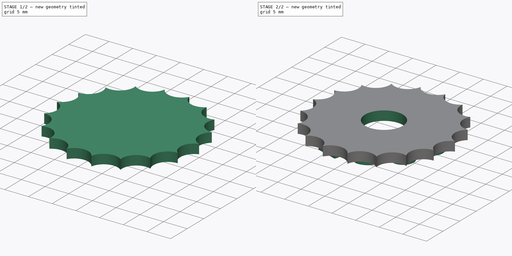
[diagram: build sequence overview — one tinted view per stage of 2, left to right]
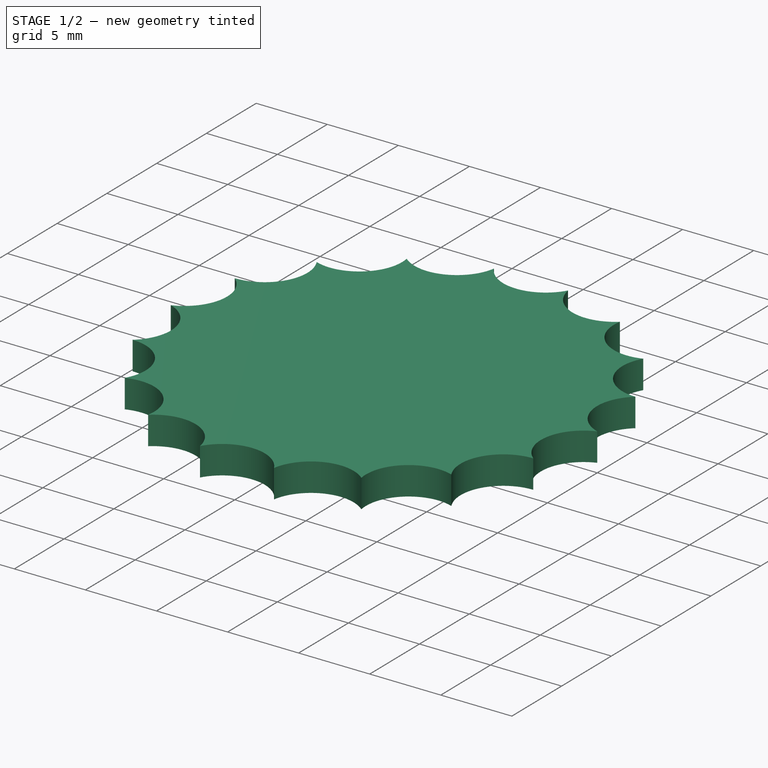
[diagram: stage 1 of 2 — iso view after this stage's code; geometry added in this stage tinted green]
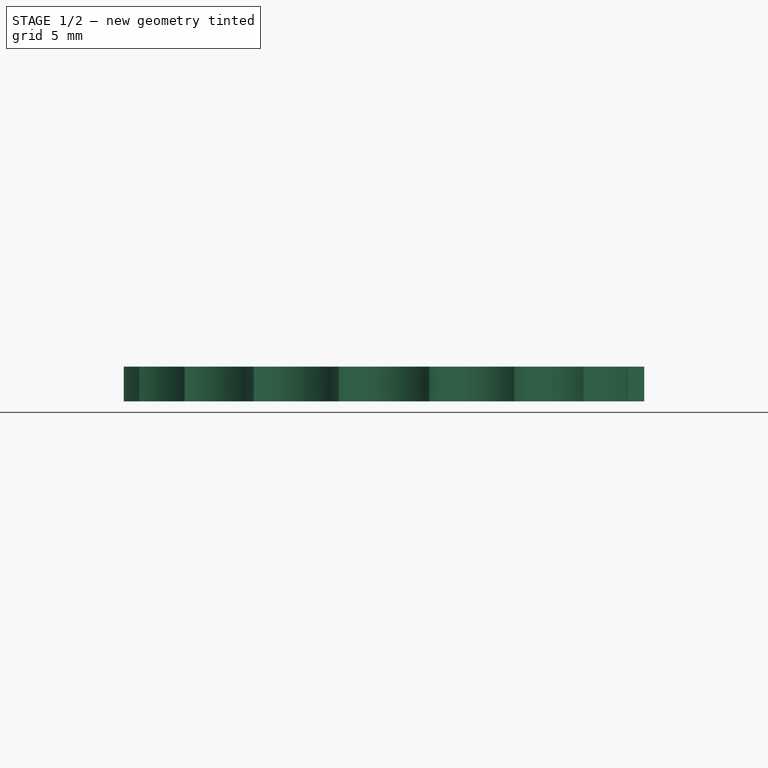
[diagram: stage 1 of 2 — front view after this stage's code; geometry added in this stage tinted green]
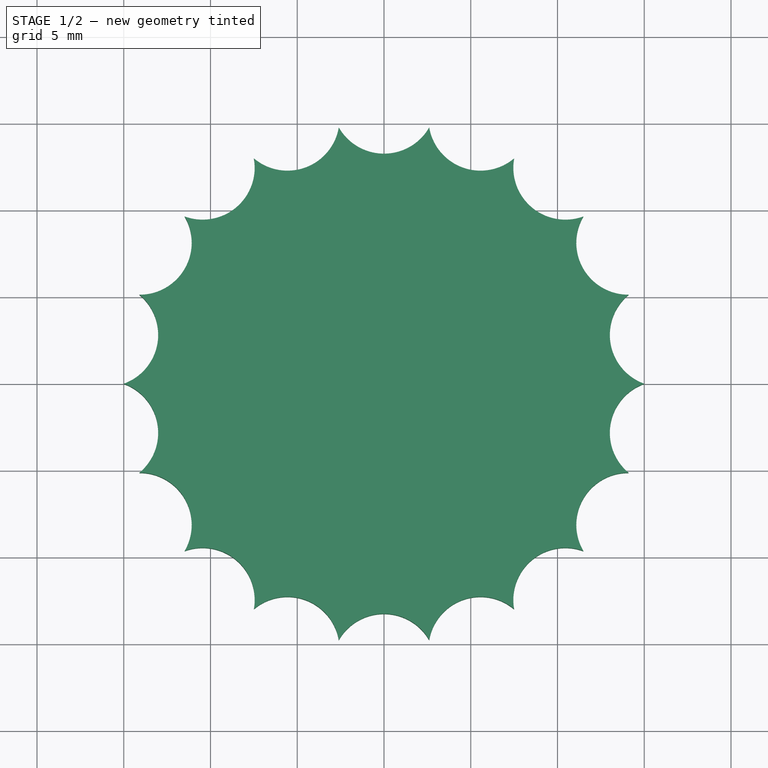
[diagram: stage 1 of 2 — top view after this stage's code; geometry added in this stage tinted green]
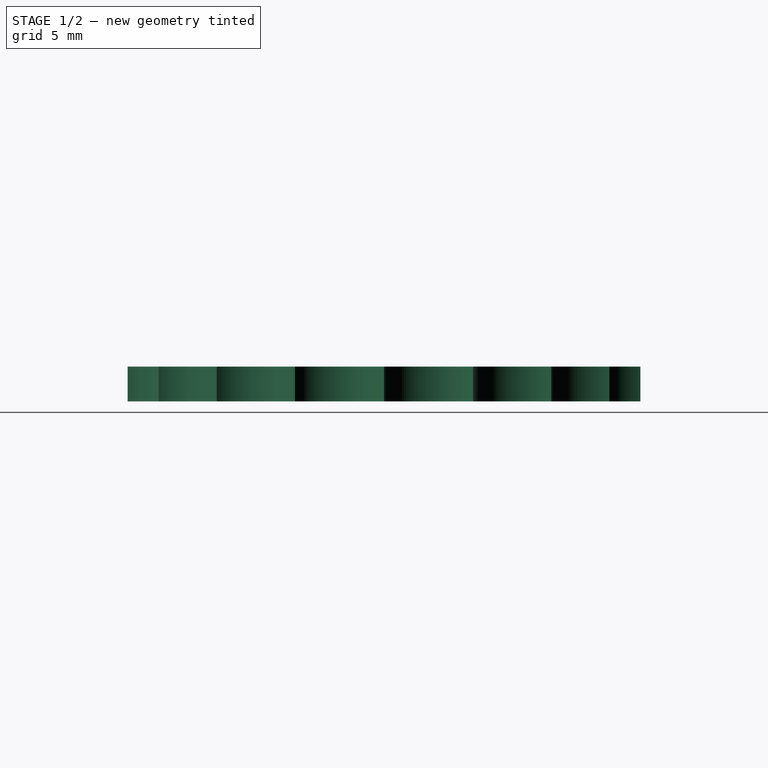
[diagram: stage 1 of 2 — right view after this stage's code; geometry added in this stage tinted green]
FCSTD DOCUMENT  (FreeCAD 0.20R29603 (Git))
Label: mileage tracker
License: All rights reserved
LicenseURL: http://en.wikipedia.org/wiki/All_rights_reserved
objects: Part::FeaturePython×2, Sketcher::SketchObject×2, Part::Extrusion×1, PartDesign::Pad×1, PartDesign::PolarPattern×1, PartDesign::Pocket×1, PartDesign::Body×1
note: 11 computed .brp shape members not serialized (recipe doc carries the construction recipe); baked Part::Feature solids carry a one-line shape summary decoded from their .brp

FEATURE [Sketcher::SketchObject] Sketch001
  FullyConstrained = true
  MapMode = 5
  Support = -> [XY_Plane]
  sketch-geometry (1):
    g0: Circle CenterX=0 CenterY=0 CenterZ=0 NormalX=0 NormalY=0 NormalZ=1 AngleXU=0 Radius=4
  constraints (2):
    c: Coincident(g0,g-1)
    c: Diameter(g0) = 8
FEATURE [Sketcher::SketchObject] Sketch002
  FullyConstrained = true
  MapMode = 5
  Support = -> [XY_Plane]
  sketch-geometry (3):
    g0: LineSegment StartX=-2.60472 StartY=14.7721 StartZ=0 EndX=0 EndY=0 EndZ=0
    g1: LineSegment StartX=0 StartY=0 StartZ=0 EndX=2.60472 EndY=14.7721 EndZ=0
    g2: ArcOfCircle CenterX=0 CenterY=16.2605 CenterZ=0 NormalX=0 NormalY=0 NormalZ=1 AngleXU=0 Radius=3 StartAngle=3.66074 EndAngle=5.76403
  constraints (8):
    c: Coincident(g0,g-1)
    c: Coincident(g0,g1)
    c: Angle(g1,g0) = 0.349066
    c: Coincident(g2,g0)
    c: Coincident(g2,g1)
    c: Diameter(g2) = 6
    c: Symmetric(g1,g0,g-2)
    c: Distance(g1) = 15
FEATURE [PartDesign::Pad] Pad
  Direction = (0,0,1)
  Length = 2
  Length2 = 10
  Profile = -> Sketch002
  ReferenceAxis = -> Sketch002 [N_Axis]
  Type = 0
FEATURE [PartDesign::PolarPattern] PolarPattern
  Angle = 360
  Axis = -> Sketch002 [N_Axis]
  BaseFeature = -> Pad
  Occurrences = 18
  Originals = -> [Pad]
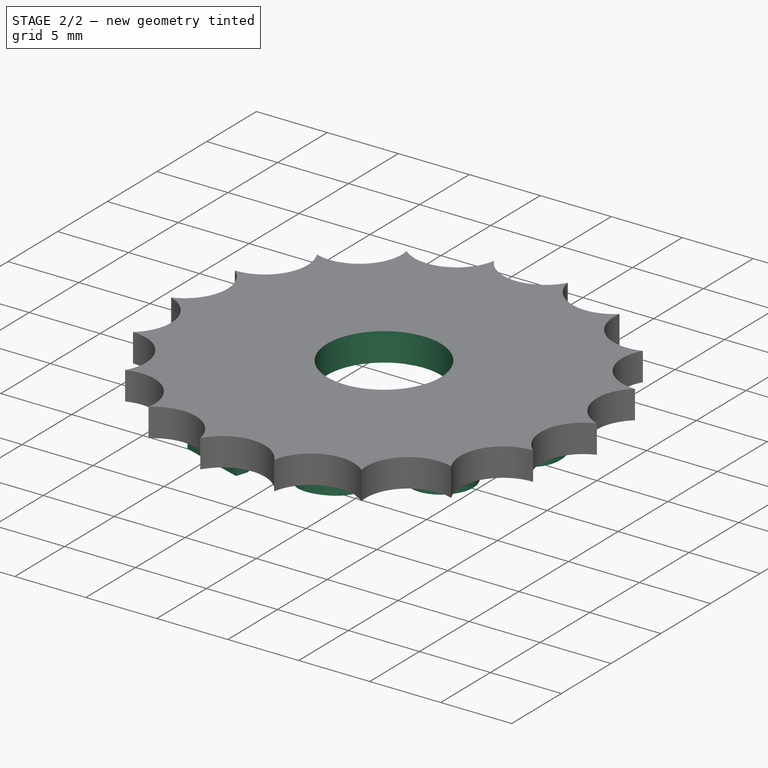
[diagram: stage 2 of 2 — iso view after this stage's code; geometry added in this stage tinted green]
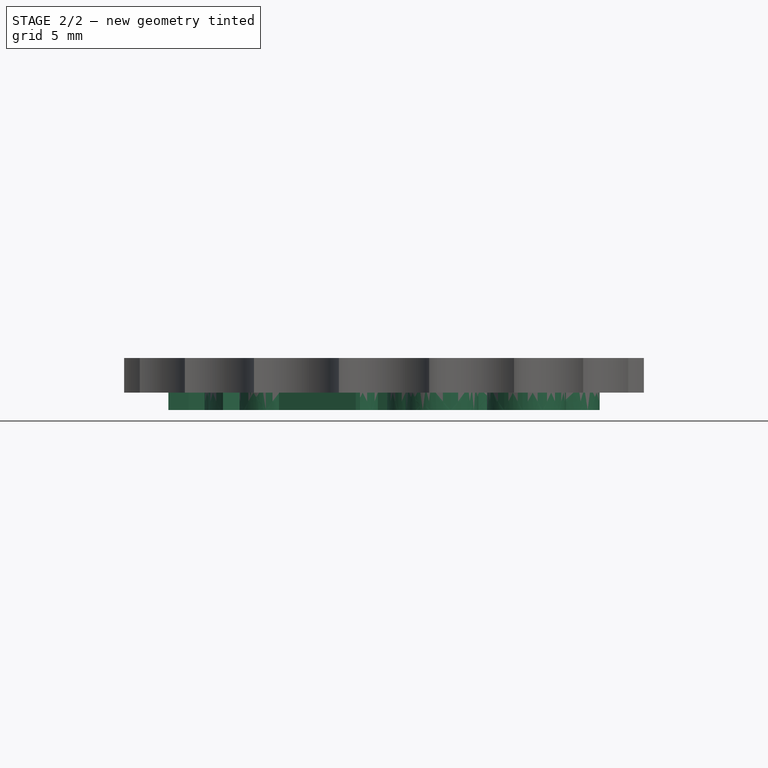
[diagram: stage 2 of 2 — front view after this stage's code; geometry added in this stage tinted green]
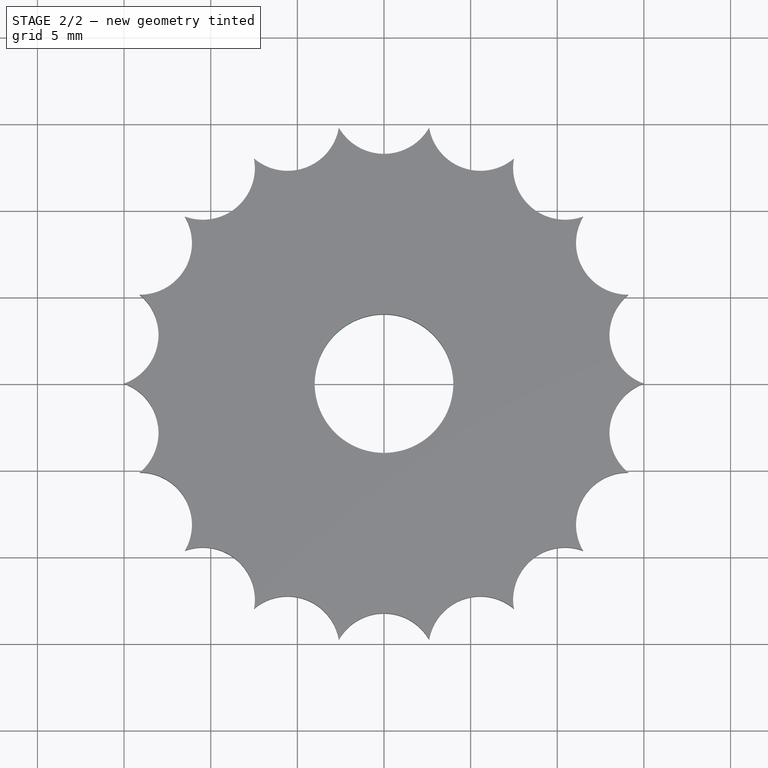
[diagram: stage 2 of 2 — top view after this stage's code; geometry added in this stage tinted green]
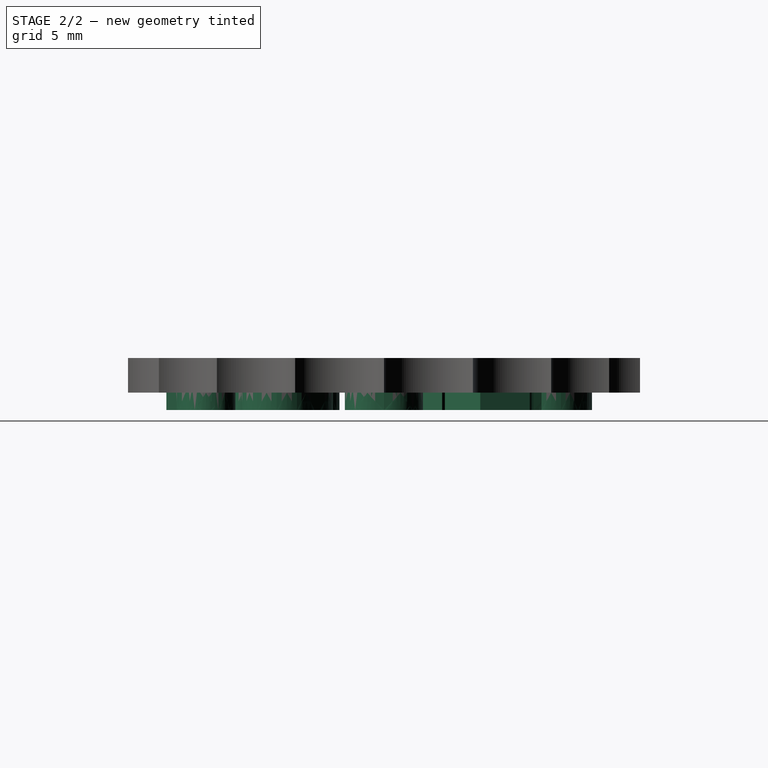
[diagram: stage 2 of 2 — right view after this stage's code; geometry added in this stage tinted green]
FEATURE [Part::FeaturePython] PolarArray  # WARN: FeaturePython — macro-defined, semantics opaque (R4)
  Alignment = 3
  AttacherType = Attacher::AttachEngine3D
  CellStart = A1
  Count = 10
  DistributionLaw = 0
  EndInclusive = false
  ExposePlacement = false
  FlipX = false
  FlipZ = true
  GeneratorMode = 0
  MarkerShape = 1
  MarkerSize = 0
  NumElements = 10
  OrientMode = 3
  Radius = 6
  Reverse = false
  SpanEnd = 360
  SpanStart = 0
  Step = 36
  Type = lattice2PolarArray2.PolarArray
  UseArcRadius = false
  UseArcRange = 0
  VSGVersion = 1
  Values = 0.0 | 36.0 | 72.0 | 108.0 | 144.0 | 180.0 | 216.0 | 252.0 | 288.0 | 324.0
  ValuesSource = 2
  isLattice = 1
FEATURE [Part::FeaturePython] Strings  # WARN: FeaturePython — macro-defined, semantics opaque (R4)
  AlignPrecisionBoundBox = false
  ArrayLink = -> PolarArray
  FontFile = <userpath>/.fonts/Roboto/hinted/Roboto-Black.ttf
  FullPathToFont = <userpath>/.fonts/Roboto/hinted/Roboto-Black.ttf
  MakeFace = false
  Size = 8
  Strings = 0 | 1 | 2 | 3 | 4 | 5 | 6 | 7 | 8 | 9
  Tracking = 0
  XAlign = 3
  YAlign = 0
FEATURE [Part::Extrusion] Extrude001
  Base = -> Strings
  Dir = (0,0,1)
  DirMode = 2
  FaceMakerClass = Part::FaceMakerBullseye
  LengthFwd = 1
  LengthRev = 1
  Solid = true
  Symmetric = false
FEATURE [PartDesign::Pocket] Pocket
  BaseFeature = -> PolarPattern
  Direction = (0,0,-1)
  Length = 5
  Length2 = 5
  Midplane = true
  Profile = -> Sketch001
  ReferenceAxis = -> Sketch001 [N_Axis]
  Type = 1
FEATURE [PartDesign::Body] Body
  Group = -> [Sketch001,Sketch002,Pad,PolarPattern,Pocket]
  Origin = -> Origin
  Tip = -> Pocket
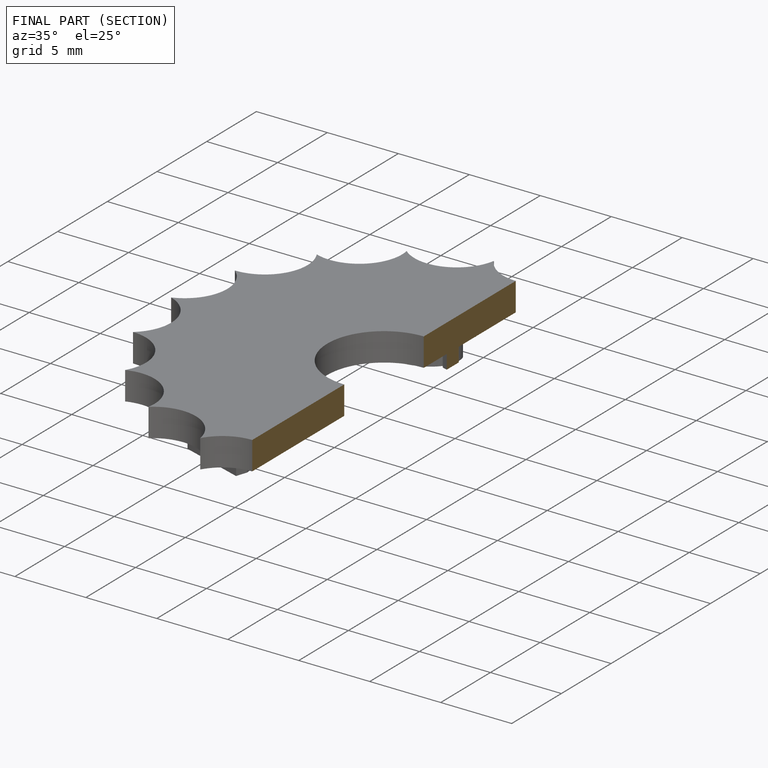
[diagram: finished part — half-section view (interior)]
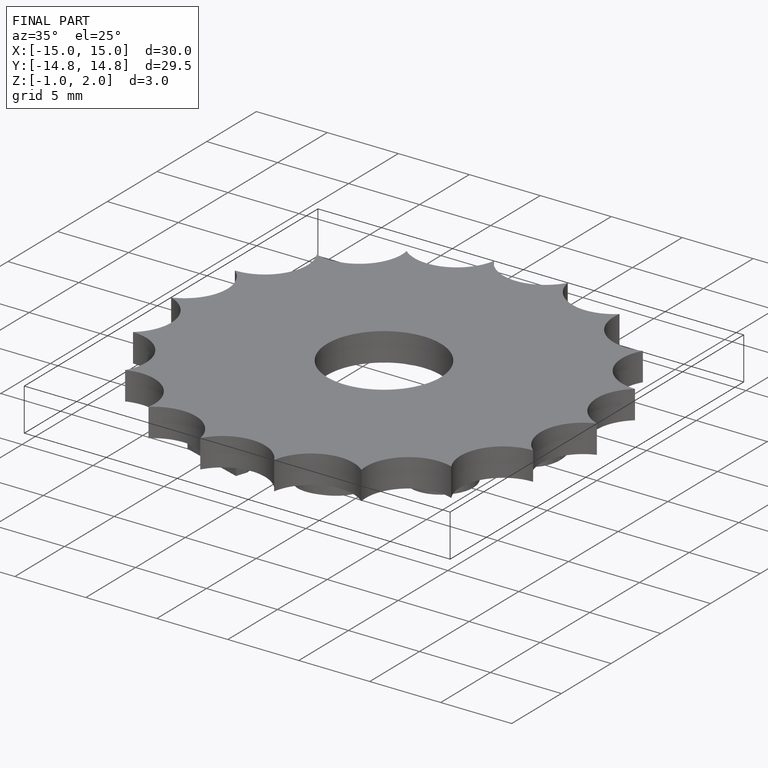
[diagram: finished part — iso view with bounding-box wireframe]
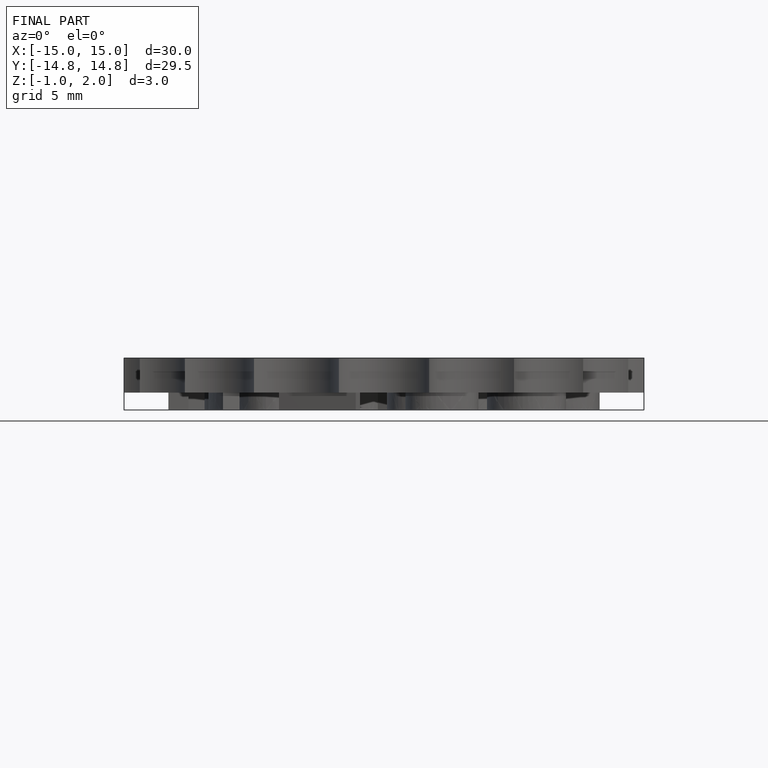
[diagram: finished part — front view with bounding-box wireframe]
